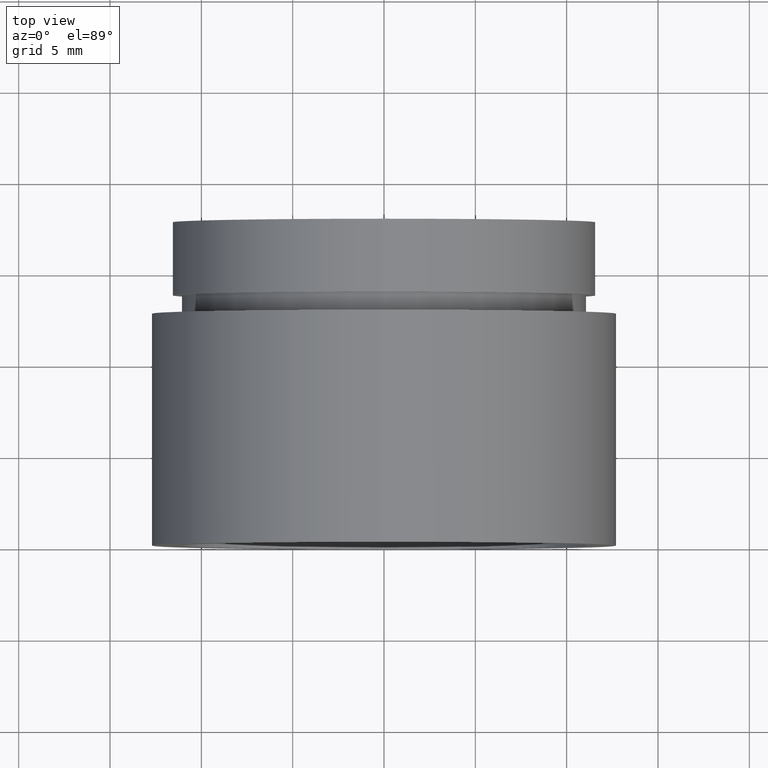
[diagram: clean part render]
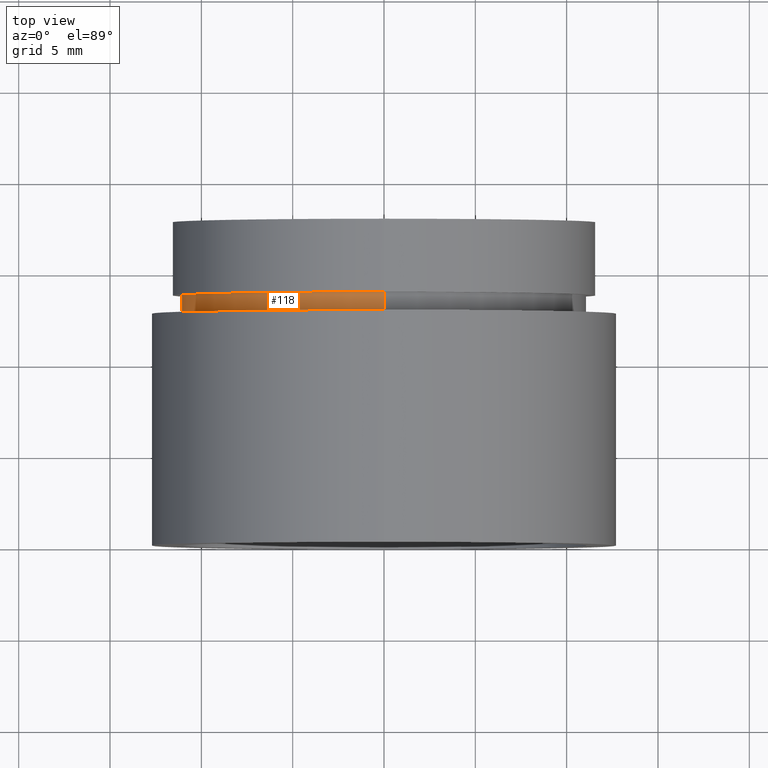
[diagram: same view with one face highlighted and labeled with its STEP entity id]
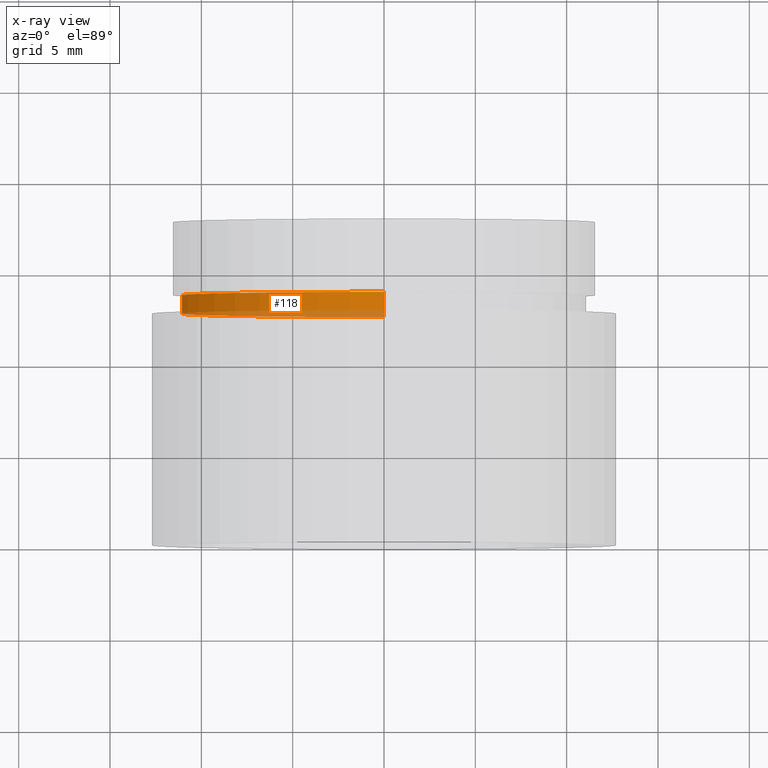
[diagram: x-ray of the same camera — body ghosted, the highlighted face saturated]
A machine part, top view. The second image highlights one B-rep face of the part: STEP entity #118.
The next image is the same camera in x-ray: the body ghosted, the highlighted face saturated — about 23% of this face is hidden behind the body in this view.
In plain terms, the highlighted cylindrical surface (partial cylindrical patch) has radius 11.1 mm, axis along (-0, 1, -0).
Its self-contained STEP definition (entity closure, byte-faithful):
#42 = VECTOR ( 'NONE', #221, 1000.000000000000000 ) ;
#45 = EDGE_LOOP ( 'NONE', ( #182, #501, #58, #274 ) ) ;
#49 = EDGE_CURVE ( 'NONE', #485, #70, #186, .T. ) ;
#58 = ORIENTED_EDGE ( 'NONE', *, *, #275, .T. ) ;
#66 = EDGE_CURVE ( 'NONE', #70, #476, #116, .T. ) ;
#70 = VERTEX_POINT ( 'NONE', #600 ) ;
#71 = CARTESIAN_POINT ( 'NONE',  ( 0.0000000000000000000, 161.3761669434274500, 0.0000000000000000000 ) ) ;
#107 = AXIS2_PLACEMENT_3D ( 'NONE', #71, #302, #598 ) ;
#116 = CIRCLE ( 'NONE', #121, 11.10000000000001700 ) ;
#118 = ADVANCED_FACE ( 'NONE', ( #393 ), #446, .T. ) ;
#121 = AXIS2_PLACEMENT_3D ( 'NONE', #168, #544, #451 ) ;
#131 = CARTESIAN_POINT ( 'NONE',  ( 0.0000000000000000000, 12.69999999999998900, 0.0000000000000000000 ) ) ;
#142 = LINE ( 'NONE', #449, #42 ) ;
#168 = CARTESIAN_POINT ( 'NONE',  ( 0.0000000000000000000, 13.69999999999999000, 0.0000000000000000000 ) ) ;
#182 = ORIENTED_EDGE ( 'NONE', *, *, #49, .F. ) ;
#186 = LINE ( 'NONE', #444, #500 ) ;
#221 = DIRECTION ( 'NONE',  ( -0.0000000000000000000, 1.000000000000000000, -0.0000000000000000000 ) ) ;
#255 = DIRECTION ( 'NONE',  ( -0.0000000000000000000, 1.000000000000000000, -0.0000000000000000000 ) ) ;
#270 = DIRECTION ( 'NONE',  ( -0.0000000000000000000, 1.000000000000000000, -0.0000000000000000000 ) ) ;
#274 = ORIENTED_EDGE ( 'NONE', *, *, #66, .F. ) ;
#275 = EDGE_CURVE ( 'NONE', #515, #476, #142, .T. ) ;
#285 = AXIS2_PLACEMENT_3D ( 'NONE', #131, #270, #508 ) ;
#302 = DIRECTION ( 'NONE',  ( -0.0000000000000000000, 1.000000000000000000, -0.0000000000000000000 ) ) ;
#362 = CARTESIAN_POINT ( 'NONE',  ( 1.359357947053564100E-015, 12.69999999999998900, -11.10000000000001700 ) ) ;
#393 = FACE_OUTER_BOUND ( 'NONE', #45, .T. ) ;
#444 = CARTESIAN_POINT ( 'NONE',  ( 1.359357947053564100E-015, 161.3761669434274500, -11.10000000000001700 ) ) ;
#446 = CYLINDRICAL_SURFACE ( 'NONE', #107, 11.10000000000001700 ) ;
#449 = CARTESIAN_POINT ( 'NONE',  ( 0.0000000000000000000, 161.3761669434274500, 11.10000000000001700 ) ) ;
#451 = DIRECTION ( 'NONE',  ( 0.0000000000000000000, 0.0000000000000000000, 1.000000000000000000 ) ) ;
#464 = CIRCLE ( 'NONE', #285, 11.10000000000001700 ) ;
#476 = VERTEX_POINT ( 'NONE', #514 ) ;
#483 = EDGE_CURVE ( 'NONE', #485, #515, #464, .T. ) ;
#485 = VERTEX_POINT ( 'NONE', #362 ) ;
#496 = CARTESIAN_POINT ( 'NONE',  ( 0.0000000000000000000, 12.69999999999998900, 11.10000000000001700 ) ) ;
#500 = VECTOR ( 'NONE', #255, 1000.000000000000000 ) ;
#501 = ORIENTED_EDGE ( 'NONE', *, *, #483, .T. ) ;
#508 = DIRECTION ( 'NONE',  ( 0.0000000000000000000, 0.0000000000000000000, 1.000000000000000000 ) ) ;
#514 = CARTESIAN_POINT ( 'NONE',  ( 0.0000000000000000000, 13.69999999999999000, 11.10000000000001700 ) ) ;
#515 = VERTEX_POINT ( 'NONE', #496 ) ;
#544 = DIRECTION ( 'NONE',  ( -0.0000000000000000000, 1.000000000000000000, -0.0000000000000000000 ) ) ;
#598 = DIRECTION ( 'NONE',  ( 0.0000000000000000000, 0.0000000000000000000, 1.000000000000000000 ) ) ;
#600 = CARTESIAN_POINT ( 'NONE',  ( 1.359357947053564100E-015, 13.69999999999999000, -11.10000000000001700 ) ) ;